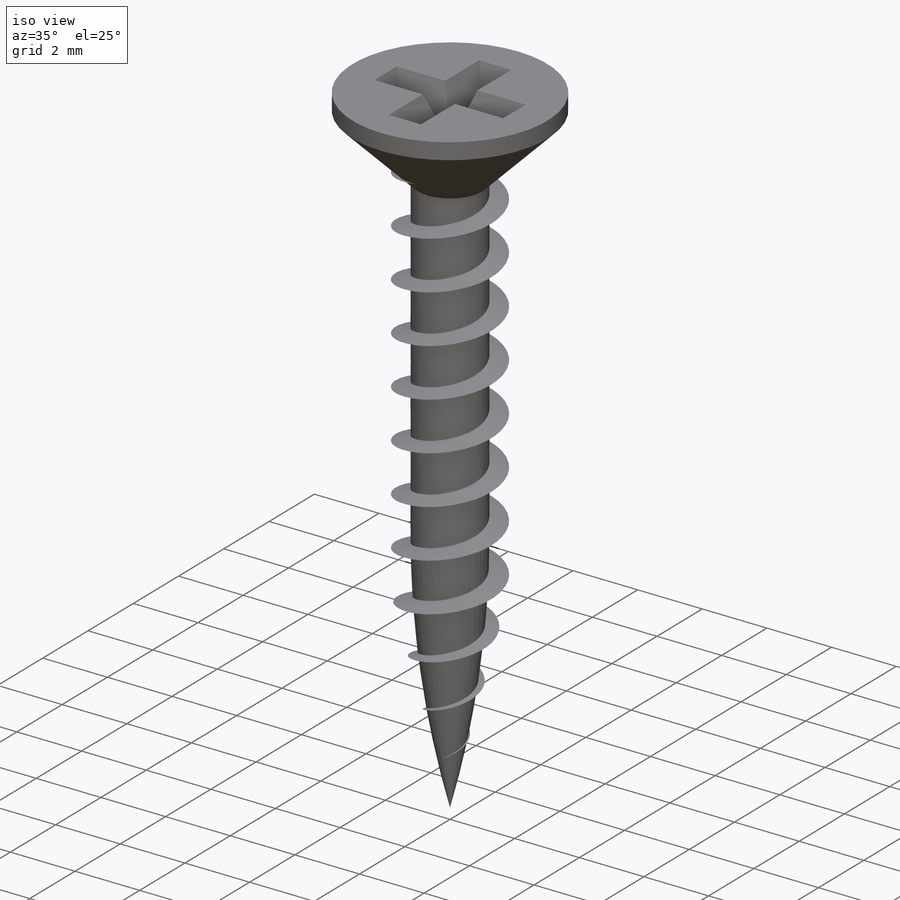
[diagram: iso view]
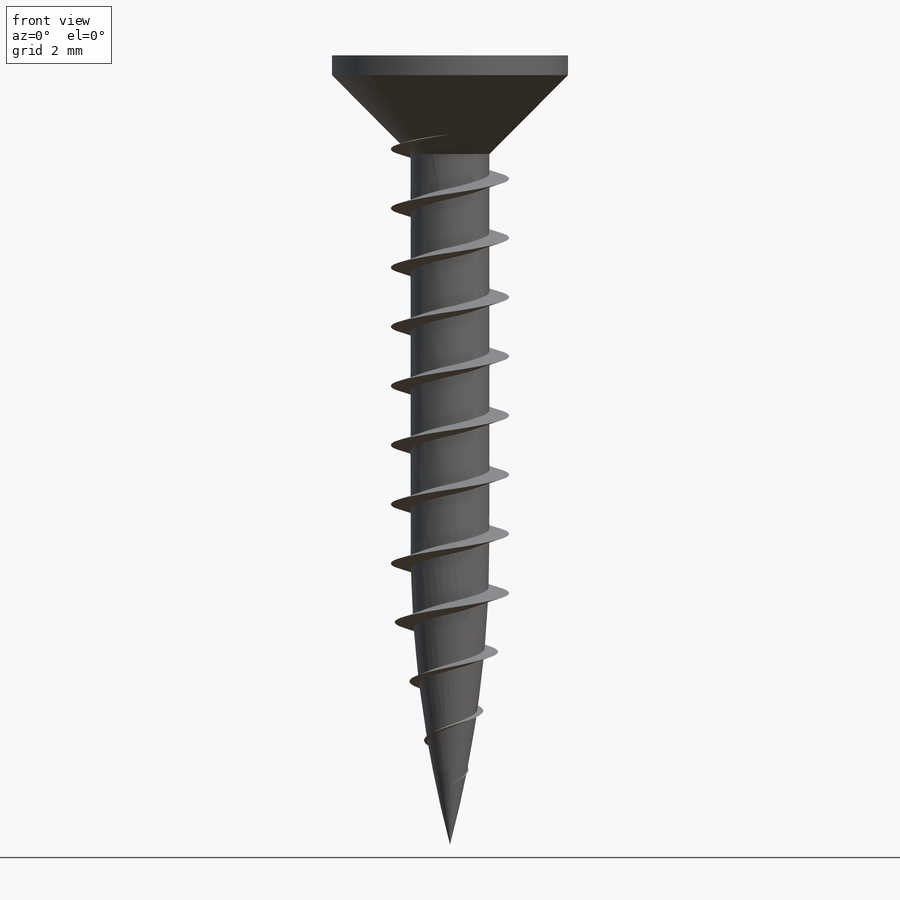
[diagram: front view]
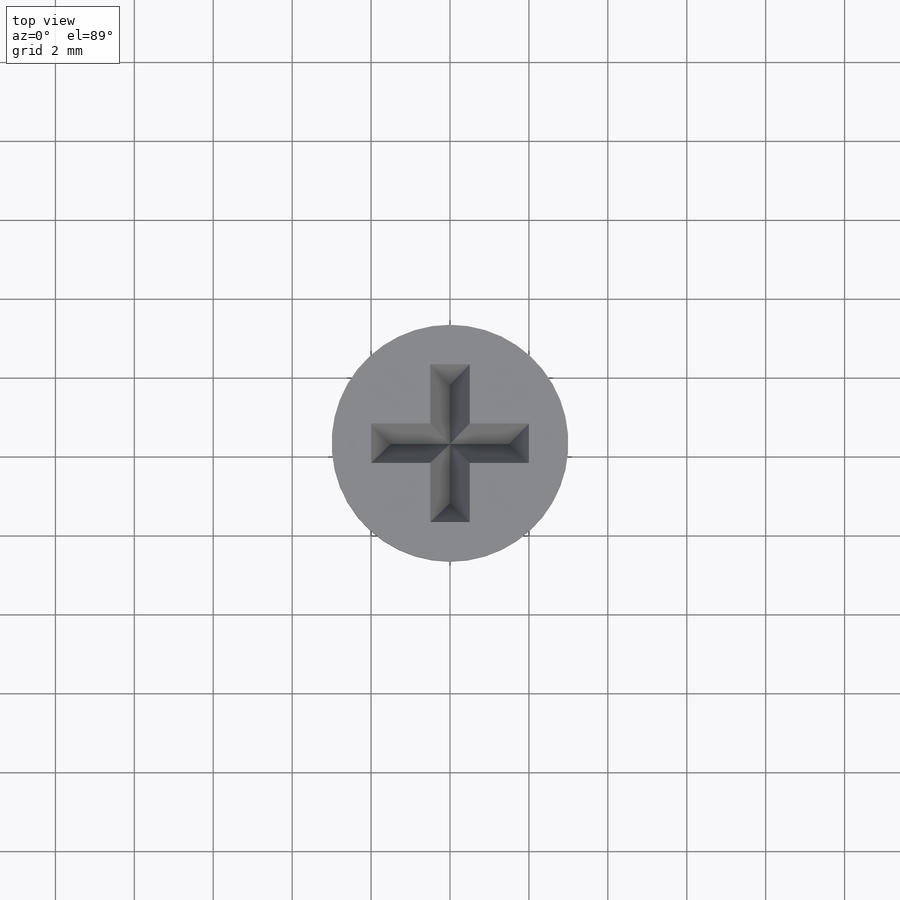
[diagram: top view]
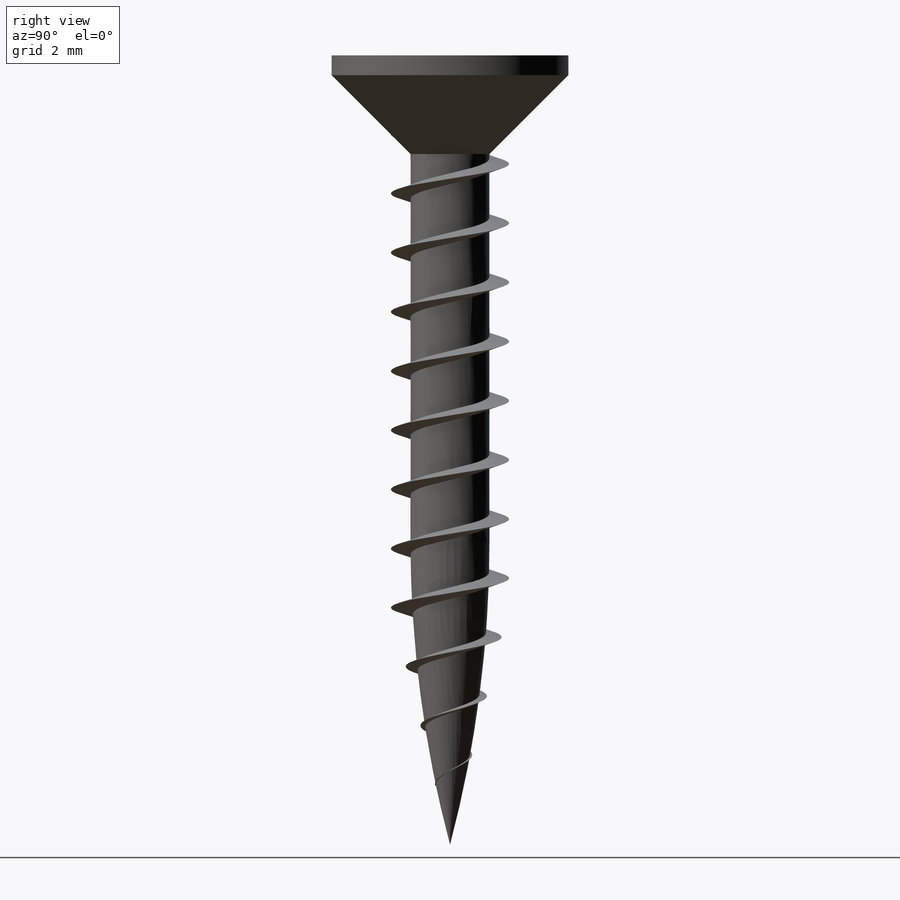
[diagram: right view]
SOLIDWORKS PART (.sldprt)
format: sldprt  version: not decoded by parser v0  size: 370,176 bytes
history: native  units: mm
features: sketch x6, plane x3, helix x2, sweep x2, material x1, revolve x1, cut_extrude x1 (+15 scaffold rows collapsed)
feature tree (31):
  scaffold x15  (default folders/planes/origin — collapsed)
  material  "Material <not specified>"
  sketch  "Sketch1"  dims[c1.D6=30.0mm c1.D1=2.0mm c1.D2=20.0mm c1.D3=6.0mm c1.D4=0.5mm c1.D5=2.0mm c2.D5=45.0deg]
  revolve  "Revolve1"  Angle=360deg
  sketch  "Sketch2"  dims[D1=4.0mm D2=1.0mm]
  cut_extrude  "Cut-Extrude1"  Depth=2mm
  plane  "Plane1"  Offset=2mm
  sketch  "Sketch3"  dims[D1=3.0mm]
  helix  "Helix/Spiral1"  Pitch=12mm
  plane  "Plane2"
  sketch  "Sketch5"  dims[c1.D1=~0.428264mm c2.D1=30.0deg c2.D2=0.6mm]
  sweep  "Sweep2"
  plane  "Plane3"
  sketch  "Sketch6"
  helix  "Helix/Spiral2"  Pitch=4.5mm
  sketch  "Sketch7"  dims[D1=0.0mm]
  sweep  "Sweep3"
decode coverage: 9 of 12 modeling features carry decoded parameters
note: ~ marks probable driven/reference dimensions
note: suppression state not decoded; provenance and decode notes live in map.json
